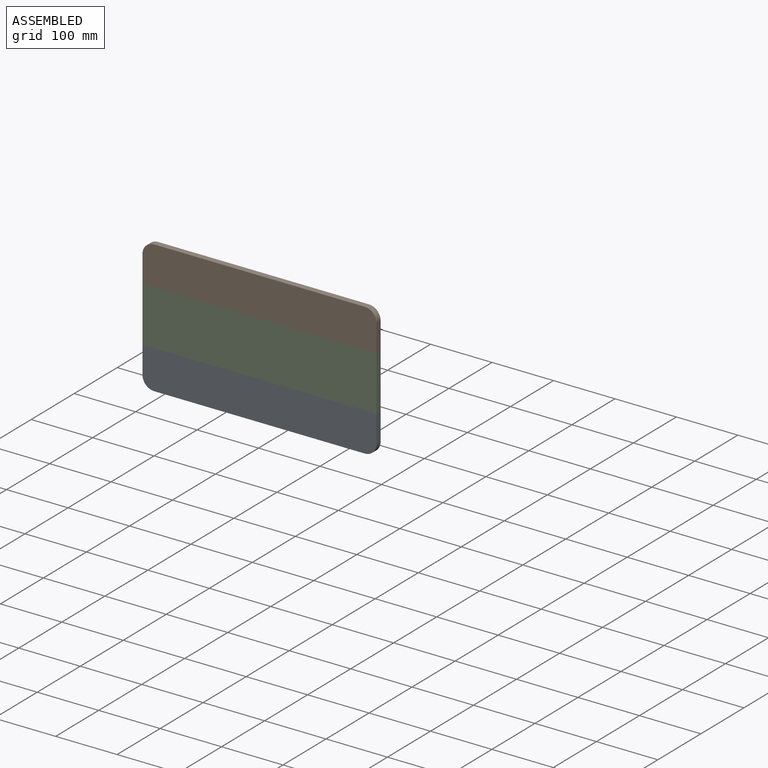
[diagram: assembled view]
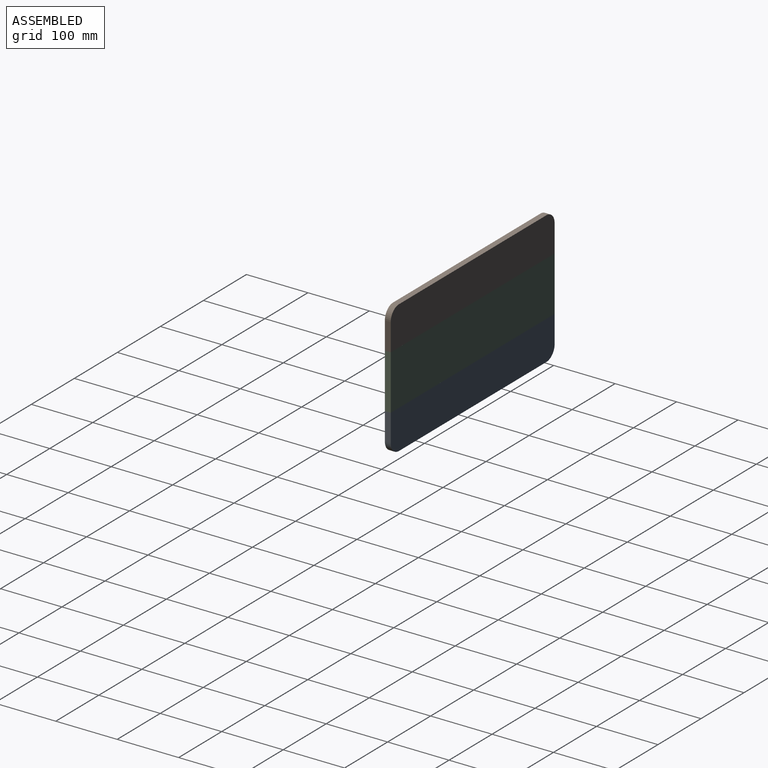
[diagram: assembled view, second angle]
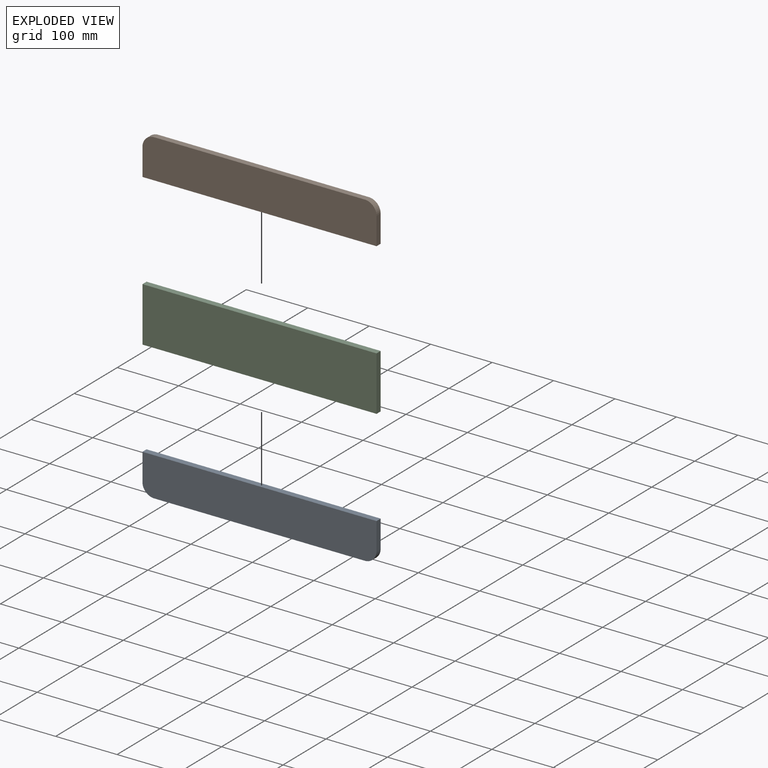
[diagram: exploded view]
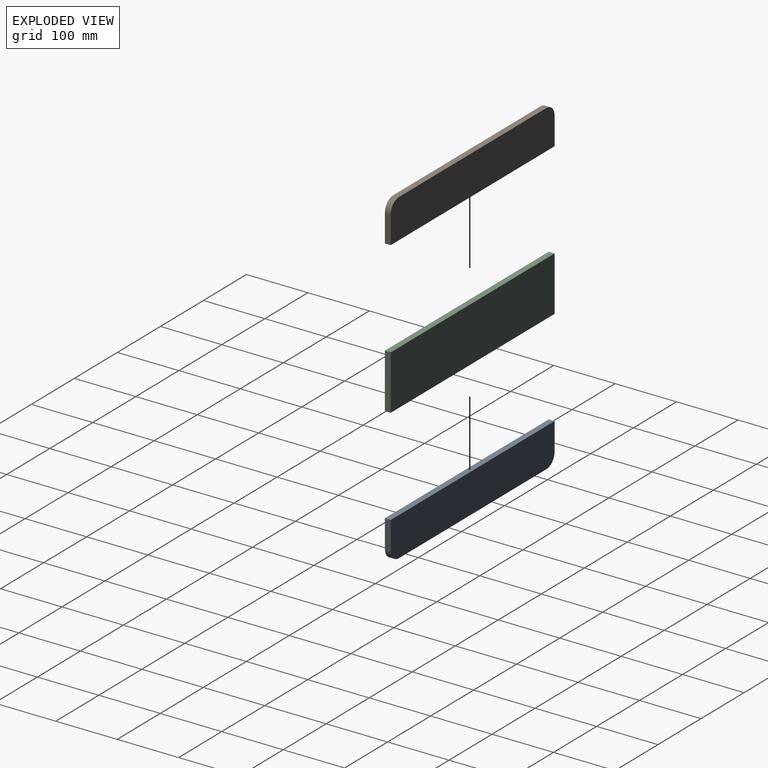
[diagram: exploded view, second angle]
ASSEMBLY  parts=3 mates=6
PART A: 8 faces, bbox 381x9.5x63.5 mm
  f0: cylinder r=19.05mm len=19.05mm, axis (0,1,0), area 285mm2, adj f1,f5,f6,f7
  f1: plane 342.9x9.53mm, normal (0,0,1), area 3266.1mm2, adj f0,f2,f6,f7
  f2: cylinder r=19.05mm len=19.05mm, axis (0,1,0), area 285mm2, adj f1,f3,f6,f7
  f3: plane 44.45x9.53mm, normal (-1,0,0), area 423.4mm2, adj f2,f4,f6,f7
  f4: plane 381x9.53mm, normal (0,0,-1), area 3629mm2, adj f3,f5,f6,f7
  f5: plane 44.45x9.53mm, normal (1,0,0), area 423.4mm2, adj f0,f4,f6,f7
  f6: plane 381x63.5mm, normal (0,-1,0), area 24037.7mm2, adj f0,f1,f2,f3,f4,f5
  f7: plane 381x63.5mm, normal (0,1,0), area 24037.7mm2, adj f0,f1,f2,f3,f4,f5
PART B: same geometry as A
PART C: 6 faces, bbox 381x9.5x88.9 mm
  f0: plane 381x9.53mm, normal (0,0,1), area 3629mm2, adj f1,f3,f4,f5
  f1: plane 88.9x9.53mm, normal (-1,0,0), area 846.8mm2, adj f0,f2,f4,f5
  f2: plane 381x9.53mm, normal (0,0,-1), area 3629mm2, adj f1,f3,f4,f5
  f3: plane 88.9x9.53mm, normal (1,0,0), area 846.8mm2, adj f0,f2,f4,f5
  f4: plane 381x88.9mm, normal (0,-1,0), area 33870.9mm2, adj f0,f1,f2,f3
  f5: plane 381x88.9mm, normal (0,1,0), area 33870.9mm2, adj f0,f1,f2,f3
PLACE A rot(axis=(1,0,0),180deg) t=(-43.31,-16.7,-31.99)mm
PLACE B t=(-43.31,-16.7,56.91)mm
PLACE C t=(-43.31,-16.7,12.46)mm fixed
MATE planar C.f3 <-> A.f5  axis (1,0,0) through (147.19,-16.7,12.46)mm
MATE planar B.f4 <-> C.f0  axis (0,0,-1) through (-43.31,-16.7,56.91)mm
MATE planar A.f4 <-> C.f2  axis (0,0,1) through (-43.31,-16.7,-31.99)mm
MATE planar B.f5 <-> C.f3  axis (1,0,0) through (147.19,-16.7,79.14)mm
MATE planar B.f6 <-> C.f4  axis (0,-1,0) through (-43.31,-21.46,88.49)mm
MATE planar A.f7 <-> C.f4  axis (0,-1,0) through (-43.31,-21.46,-63.56)mm
